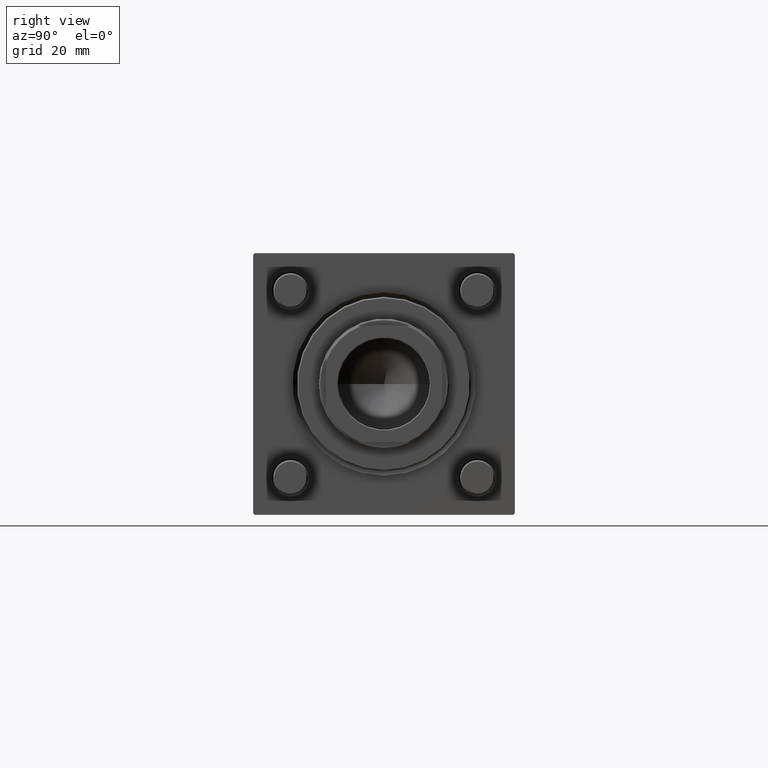
[diagram: clean part render]
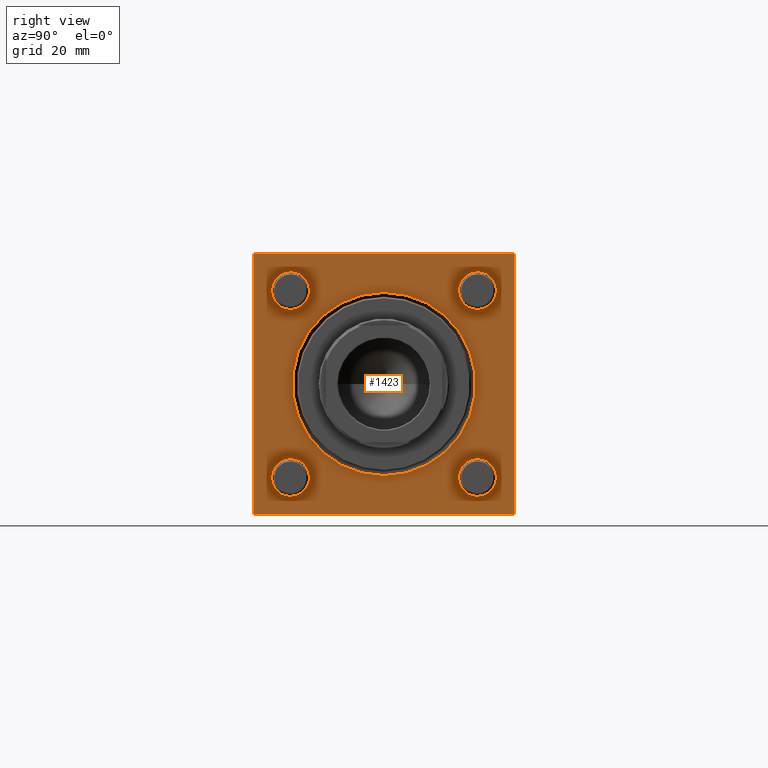
[diagram: same view with one face highlighted and labeled with its STEP entity id]
A machine part, right view. The second image highlights one B-rep face of the part: STEP entity #1423.
In plain terms, the highlighted planar face has unit normal (-1, 0, 0).
Its self-contained STEP definition (entity closure, byte-faithful):
#139 = ORIENTED_EDGE ( 'NONE', *, *, #50261, .T. ) ;
#380 = DIRECTION ( 'NONE',  ( 0.000000000000000000, 0.000000000000000000, 1.000000000000000000 ) ) ;
#645 = DIRECTION ( 'NONE',  ( 0.000000000000000000, 0.000000000000000000, 1.000000000000000000 ) ) ;
#902 = VERTEX_POINT ( 'NONE', #18112 ) ;
#1258 = CARTESIAN_POINT ( 'NONE',  ( 155.0000000000000000, 0.000000000000000000, 0.000000000000000000 ) ) ;
#1423 = ADVANCED_FACE ( 'NONE', ( #5559, #40521, #52851, #53408, #23040, #22756 ), #52571, .F. ) ;
#1675 = CIRCLE ( 'NONE', #55663, 6.500000000000061284 ) ;
#1967 = VERTEX_POINT ( 'NONE', #9908 ) ;
#2046 = DIRECTION ( 'NONE',  ( 0.000000000000000000, 0.000000000000000000, -1.000000000000000000 ) ) ;
#2195 = LINE ( 'NONE', #49488, #26993 ) ;
#2434 = CARTESIAN_POINT ( 'NONE',  ( 155.0000000000000000, -44.49999999999990052, -45.00000000000000000 ) ) ;
#2782 = VERTEX_POINT ( 'NONE', #8679 ) ;
#2835 = LINE ( 'NONE', #22017, #55530 ) ;
#3105 = CARTESIAN_POINT ( 'NONE',  ( 155.0000000000000000, 45.00000000000001421, -44.49999999999997158 ) ) ;
#3236 = ORIENTED_EDGE ( 'NONE', *, *, #49485, .T. ) ;
#3290 = CARTESIAN_POINT ( 'NONE',  ( 155.0000000000000000, 32.14999999999999147, 38.65000000000007674 ) ) ;
#3576 = ORIENTED_EDGE ( 'NONE', *, *, #26132, .T. ) ;
#4039 = CARTESIAN_POINT ( 'NONE',  ( 155.0000000000000000, -44.49999999999994316, 44.99999999999998579 ) ) ;
#4363 = ORIENTED_EDGE ( 'NONE', *, *, #50437, .T. ) ;
#4378 = DIRECTION ( 'NONE',  ( 0.000000000000000000, 0.7071067811865524577, -0.7071067811865426878 ) ) ;
#4576 = ORIENTED_EDGE ( 'NONE', *, *, #38093, .F. ) ;
#5274 = ORIENTED_EDGE ( 'NONE', *, *, #20606, .T. ) ;
#5559 = FACE_BOUND ( 'NONE', #51859, .T. ) ;
#6779 = CIRCLE ( 'NONE', #27835, 6.500000000000061284 ) ;
#7459 = LINE ( 'NONE', #24104, #31015 ) ;
#7740 = EDGE_CURVE ( 'NONE', #14068, #38901, #51332, .T. ) ;
#7744 = EDGE_LOOP ( 'NONE', ( #3236, #3576 ) ) ;
#7855 = ORIENTED_EDGE ( 'NONE', *, *, #7740, .T. ) ;
#7887 = ORIENTED_EDGE ( 'NONE', *, *, #8668, .T. ) ;
#8069 = CARTESIAN_POINT ( 'NONE',  ( 155.0000000000000000, -32.14999999999997726, 38.65000000000007674 ) ) ;
#8668 = EDGE_CURVE ( 'NONE', #902, #15548, #6779, .T. ) ;
#8679 = CARTESIAN_POINT ( 'NONE',  ( 155.0000000000000000, -45.00000000000000000, 44.49999999999995737 ) ) ;
#8741 = ORIENTED_EDGE ( 'NONE', *, *, #49552, .T. ) ;
#9202 = VERTEX_POINT ( 'NONE', #50799 ) ;
#9805 = CARTESIAN_POINT ( 'NONE',  ( 155.0000000000000000, 32.14999999999999147, 32.15000000000000568 ) ) ;
#9908 = CARTESIAN_POINT ( 'NONE',  ( 155.0000000000000000, 44.50000000000001421, -45.00000000000000000 ) ) ;
#10078 = CARTESIAN_POINT ( 'NONE',  ( 155.0000000000000000, 44.49999999999998579, 45.00000000000000000 ) ) ;
#11785 = DIRECTION ( 'NONE',  ( -1.000000000000000000, -0.000000000000000000, -0.000000000000000000 ) ) ;
#11823 = VERTEX_POINT ( 'NONE', #8069 ) ;
#12219 = VERTEX_POINT ( 'NONE', #2434 ) ;
#12255 = CIRCLE ( 'NONE', #38826, 31.50000000000000000 ) ;
#12694 = CARTESIAN_POINT ( 'NONE',  ( 155.0000000000000000, 0.000000000000000000, 0.000000000000000000 ) ) ;
#13321 = DIRECTION ( 'NONE',  ( -0.000000000000000000, 0.000000000000000000, 1.000000000000000000 ) ) ;
#14068 = VERTEX_POINT ( 'NONE', #19377 ) ;
#14990 = CARTESIAN_POINT ( 'NONE',  ( 155.0000000000000000, 32.14999999999999147, -25.64999999999994529 ) ) ;
#15097 = DIRECTION ( 'NONE',  ( 0.000000000000000000, -1.000000000000000000, 0.000000000000000000 ) ) ;
#15229 = CIRCLE ( 'NONE', #22548, 6.500000000000061284 ) ;
#15548 = VERTEX_POINT ( 'NONE', #15965 ) ;
#15965 = CARTESIAN_POINT ( 'NONE',  ( 155.0000000000000000, -32.14999999999997726, -25.64999999999994884 ) ) ;
#16489 = CARTESIAN_POINT ( 'NONE',  ( 155.0000000000000000, 32.14999999999999147, 32.15000000000000568 ) ) ;
#17343 = EDGE_CURVE ( 'NONE', #18723, #30523, #15229, .T. ) ;
#17549 = CARTESIAN_POINT ( 'NONE',  ( 155.0000000000000000, -44.49999999999992895, -45.00000000000000000 ) ) ;
#17757 = AXIS2_PLACEMENT_3D ( 'NONE', #9805, #18395, #36448 ) ;
#18112 = CARTESIAN_POINT ( 'NONE',  ( 155.0000000000000000, -32.14999999999997726, -38.65000000000007674 ) ) ;
#18395 = DIRECTION ( 'NONE',  ( -1.000000000000000000, -0.000000000000000000, -0.000000000000000000 ) ) ;
#18723 = VERTEX_POINT ( 'NONE', #37311 ) ;
#18960 = DIRECTION ( 'NONE',  ( 0.000000000000000000, 0.000000000000000000, 1.000000000000000000 ) ) ;
#19145 = VERTEX_POINT ( 'NONE', #47815 ) ;
#19377 = CARTESIAN_POINT ( 'NONE',  ( 155.0000000000000000, 44.49999999999998579, 45.00000000000000000 ) ) ;
#19520 = CARTESIAN_POINT ( 'NONE',  ( 155.0000000000000000, 45.00000000000001421, 45.00000000000000000 ) ) ;
#19692 = AXIS2_PLACEMENT_3D ( 'NONE', #45481, #23970, #46313 ) ;
#20363 = VECTOR ( 'NONE', #29328, 1000.000000000000000 ) ;
#20606 = EDGE_CURVE ( 'NONE', #11823, #26816, #25276, .T. ) ;
#21249 = EDGE_LOOP ( 'NONE', ( #52516, #5274 ) ) ;
#21563 = LINE ( 'NONE', #17549, #54688 ) ;
#21743 = DIRECTION ( 'NONE',  ( -0.000000000000000000, 0.7071067811865474617, 0.7071067811865474617 ) ) ;
#21860 = DIRECTION ( 'NONE',  ( -1.000000000000000000, -0.000000000000000000, -0.000000000000000000 ) ) ;
#22017 = CARTESIAN_POINT ( 'NONE',  ( 155.0000000000000000, 45.00000000000001421, -44.50000000000000000 ) ) ;
#22548 = AXIS2_PLACEMENT_3D ( 'NONE', #16489, #47722, #34253 ) ;
#22566 = VERTEX_POINT ( 'NONE', #14990 ) ;
#22756 = FACE_OUTER_BOUND ( 'NONE', #42811, .T. ) ;
#23040 = FACE_BOUND ( 'NONE', #23859, .T. ) ;
#23230 = CIRCLE ( 'NONE', #17757, 6.500000000000061284 ) ;
#23274 = EDGE_CURVE ( 'NONE', #1967, #44175, #2835, .T. ) ;
#23320 = DIRECTION ( 'NONE',  ( -1.000000000000000000, 0.000000000000000000, -0.000000000000000000 ) ) ;
#23822 = LINE ( 'NONE', #19520, #37666 ) ;
#23859 = EDGE_LOOP ( 'NONE', ( #139, #53897 ) ) ;
#23970 = DIRECTION ( 'NONE',  ( -1.000000000000000000, -0.000000000000000000, -0.000000000000000000 ) ) ;
#24104 = CARTESIAN_POINT ( 'NONE',  ( 155.0000000000000000, -45.00000000000000000, 44.49999999999995737 ) ) ;
#24495 = CARTESIAN_POINT ( 'NONE',  ( 155.0000000000000000, 3.857637417314162689E-15, 31.50000000000000000 ) ) ;
#24908 = DIRECTION ( 'NONE',  ( -1.000000000000000000, -0.000000000000000000, -0.000000000000000000 ) ) ;
#24972 = DIRECTION ( 'NONE',  ( 0.000000000000000000, -1.000000000000000000, -1.541976423090495140E-16 ) ) ;
#25276 = CIRCLE ( 'NONE', #43624, 6.500000000000061284 ) ;
#25484 = EDGE_CURVE ( 'NONE', #19145, #12219, #21563, .T. ) ;
#25719 = AXIS2_PLACEMENT_3D ( 'NONE', #51048, #11785, #29260 ) ;
#26132 = EDGE_CURVE ( 'NONE', #22566, #36050, #1675, .T. ) ;
#26163 = EDGE_LOOP ( 'NONE', ( #48611, #4363 ) ) ;
#26264 = CARTESIAN_POINT ( 'NONE',  ( 155.0000000000000000, 32.14999999999999147, -38.65000000000006963 ) ) ;
#26816 = VERTEX_POINT ( 'NONE', #48633 ) ;
#26993 = VECTOR ( 'NONE', #15097, 1000.000000000000000 ) ;
#27219 = EDGE_CURVE ( 'NONE', #38901, #2782, #7459, .T. ) ;
#27557 = CARTESIAN_POINT ( 'NONE',  ( 155.0000000000000000, 32.14999999999999147, -32.15000000000000568 ) ) ;
#27562 = DIRECTION ( 'NONE',  ( 0.000000000000000000, -0.7071067811865474617, 0.7071067811865474617 ) ) ;
#27792 = VECTOR ( 'NONE', #24972, 1000.000000000000000 ) ;
#27835 = AXIS2_PLACEMENT_3D ( 'NONE', #46990, #24908, #54740 ) ;
#27849 = DIRECTION ( 'NONE',  ( -1.000000000000000000, -0.000000000000000000, -0.000000000000000000 ) ) ;
#28440 = CARTESIAN_POINT ( 'NONE',  ( 155.0000000000000000, 45.00000000000001421, 45.00000000000000000 ) ) ;
#28473 = CIRCLE ( 'NONE', #25719, 6.500000000000061284 ) ;
#29260 = DIRECTION ( 'NONE',  ( 0.000000000000000000, 0.000000000000000000, 1.000000000000000000 ) ) ;
#29328 = DIRECTION ( 'NONE',  ( 0.000000000000000000, 7.709882115452478166E-17, -1.000000000000000000 ) ) ;
#29645 = AXIS2_PLACEMENT_3D ( 'NONE', #55104, #50531, #42205 ) ;
#30101 = ORIENTED_EDGE ( 'NONE', *, *, #53564, .F. ) ;
#30523 = VERTEX_POINT ( 'NONE', #3290 ) ;
#30557 = CIRCLE ( 'NONE', #43364, 6.500000000000061284 ) ;
#31015 = VECTOR ( 'NONE', #54487, 1000.000000000000114 ) ;
#31039 = CARTESIAN_POINT ( 'NONE',  ( 155.0000000000000000, -32.14999999999997726, 32.15000000000001279 ) ) ;
#32435 = LINE ( 'NONE', #10078, #43406 ) ;
#32919 = CARTESIAN_POINT ( 'NONE',  ( 155.0000000000000000, 0.000000000000000000, -31.50000000000000000 ) ) ;
#33638 = CARTESIAN_POINT ( 'NONE',  ( 155.0000000000000000, -45.00000000000000000, 44.99999999999998579 ) ) ;
#34253 = DIRECTION ( 'NONE',  ( 0.000000000000000000, 0.000000000000000000, 1.000000000000000000 ) ) ;
#34726 = EDGE_CURVE ( 'NONE', #26816, #11823, #28473, .T. ) ;
#35848 = AXIS2_PLACEMENT_3D ( 'NONE', #1258, #23320, #13321 ) ;
#36050 = VERTEX_POINT ( 'NONE', #26264 ) ;
#36448 = DIRECTION ( 'NONE',  ( 0.000000000000000000, 0.000000000000000000, 1.000000000000000000 ) ) ;
#37311 = CARTESIAN_POINT ( 'NONE',  ( 155.0000000000000000, 32.14999999999999147, 25.64999999999994529 ) ) ;
#37666 = VECTOR ( 'NONE', #2046, 1000.000000000000000 ) ;
#38093 = EDGE_CURVE ( 'NONE', #9202, #44175, #23822, .T. ) ;
#38826 = AXIS2_PLACEMENT_3D ( 'NONE', #12694, #21860, #645 ) ;
#38901 = VERTEX_POINT ( 'NONE', #4039 ) ;
#38936 = CIRCLE ( 'NONE', #19692, 6.500000000000061284 ) ;
#40521 = FACE_BOUND ( 'NONE', #7744, .T. ) ;
#40834 = ORIENTED_EDGE ( 'NONE', *, *, #41836, .T. ) ;
#41836 = EDGE_CURVE ( 'NONE', #2782, #19145, #51683, .T. ) ;
#42205 = DIRECTION ( 'NONE',  ( 0.000000000000000000, 0.000000000000000000, 1.000000000000000000 ) ) ;
#42207 = ORIENTED_EDGE ( 'NONE', *, *, #23274, .T. ) ;
#42811 = EDGE_LOOP ( 'NONE', ( #40834, #51124, #30101, #42207, #4576, #8741, #7855, #43685 ) ) ;
#43364 = AXIS2_PLACEMENT_3D ( 'NONE', #49621, #27849, #53065 ) ;
#43406 = VECTOR ( 'NONE', #27562, 1000.000000000000114 ) ;
#43624 = AXIS2_PLACEMENT_3D ( 'NONE', #31039, #48800, #380 ) ;
#43685 = ORIENTED_EDGE ( 'NONE', *, *, #27219, .T. ) ;
#44175 = VERTEX_POINT ( 'NONE', #3105 ) ;
#45036 = DIRECTION ( 'NONE',  ( -1.000000000000000000, -0.000000000000000000, -0.000000000000000000 ) ) ;
#45481 = CARTESIAN_POINT ( 'NONE',  ( 155.0000000000000000, -32.14999999999997726, -32.15000000000001279 ) ) ;
#46313 = DIRECTION ( 'NONE',  ( 0.000000000000000000, 0.000000000000000000, 1.000000000000000000 ) ) ;
#46990 = CARTESIAN_POINT ( 'NONE',  ( 155.0000000000000000, -32.14999999999997726, -32.15000000000001279 ) ) ;
#47036 = CIRCLE ( 'NONE', #29645, 31.50000000000000000 ) ;
#47722 = DIRECTION ( 'NONE',  ( -1.000000000000000000, -0.000000000000000000, -0.000000000000000000 ) ) ;
#47815 = CARTESIAN_POINT ( 'NONE',  ( 155.0000000000000000, -44.99999999999999289, -44.49999999999991473 ) ) ;
#48611 = ORIENTED_EDGE ( 'NONE', *, *, #17343, .T. ) ;
#48633 = CARTESIAN_POINT ( 'NONE',  ( 155.0000000000000000, -32.14999999999997726, 25.64999999999994884 ) ) ;
#48800 = DIRECTION ( 'NONE',  ( -1.000000000000000000, -0.000000000000000000, -0.000000000000000000 ) ) ;
#49485 = EDGE_CURVE ( 'NONE', #36050, #22566, #30557, .T. ) ;
#49488 = CARTESIAN_POINT ( 'NONE',  ( 155.0000000000000000, 45.00000000000001421, -45.00000000000000000 ) ) ;
#49552 = EDGE_CURVE ( 'NONE', #9202, #14068, #32435, .T. ) ;
#49621 = CARTESIAN_POINT ( 'NONE',  ( 155.0000000000000000, 32.14999999999999147, -32.15000000000000568 ) ) ;
#50261 = EDGE_CURVE ( 'NONE', #53306, #55573, #47036, .T. ) ;
#50369 = EDGE_CURVE ( 'NONE', #55573, #53306, #12255, .T. ) ;
#50437 = EDGE_CURVE ( 'NONE', #30523, #18723, #23230, .T. ) ;
#50531 = DIRECTION ( 'NONE',  ( -1.000000000000000000, -0.000000000000000000, -0.000000000000000000 ) ) ;
#50799 = CARTESIAN_POINT ( 'NONE',  ( 155.0000000000000000, 45.00000000000001421, 44.49999999999997158 ) ) ;
#51048 = CARTESIAN_POINT ( 'NONE',  ( 155.0000000000000000, -32.14999999999997726, 32.15000000000001279 ) ) ;
#51124 = ORIENTED_EDGE ( 'NONE', *, *, #25484, .T. ) ;
#51332 = LINE ( 'NONE', #28440, #27792 ) ;
#51683 = LINE ( 'NONE', #33638, #20363 ) ;
#51859 = EDGE_LOOP ( 'NONE', ( #7887, #53757 ) ) ;
#52516 = ORIENTED_EDGE ( 'NONE', *, *, #34726, .T. ) ;
#52571 = PLANE ( 'NONE',  #35848 ) ;
#52851 = FACE_BOUND ( 'NONE', #26163, .T. ) ;
#53065 = DIRECTION ( 'NONE',  ( 0.000000000000000000, 0.000000000000000000, 1.000000000000000000 ) ) ;
#53306 = VERTEX_POINT ( 'NONE', #32919 ) ;
#53408 = FACE_BOUND ( 'NONE', #21249, .T. ) ;
#53564 = EDGE_CURVE ( 'NONE', #1967, #12219, #2195, .T. ) ;
#53757 = ORIENTED_EDGE ( 'NONE', *, *, #54384, .T. ) ;
#53897 = ORIENTED_EDGE ( 'NONE', *, *, #50369, .T. ) ;
#54384 = EDGE_CURVE ( 'NONE', #15548, #902, #38936, .T. ) ;
#54487 = DIRECTION ( 'NONE',  ( -0.000000000000000000, -0.7071067811865474617, -0.7071067811865474617 ) ) ;
#54688 = VECTOR ( 'NONE', #4378, 1000.000000000000000 ) ;
#54740 = DIRECTION ( 'NONE',  ( 0.000000000000000000, 0.000000000000000000, 1.000000000000000000 ) ) ;
#55104 = CARTESIAN_POINT ( 'NONE',  ( 155.0000000000000000, 0.000000000000000000, 0.000000000000000000 ) ) ;
#55530 = VECTOR ( 'NONE', #21743, 1000.000000000000114 ) ;
#55573 = VERTEX_POINT ( 'NONE', #24495 ) ;
#55663 = AXIS2_PLACEMENT_3D ( 'NONE', #27557, #45036, #18960 ) ;